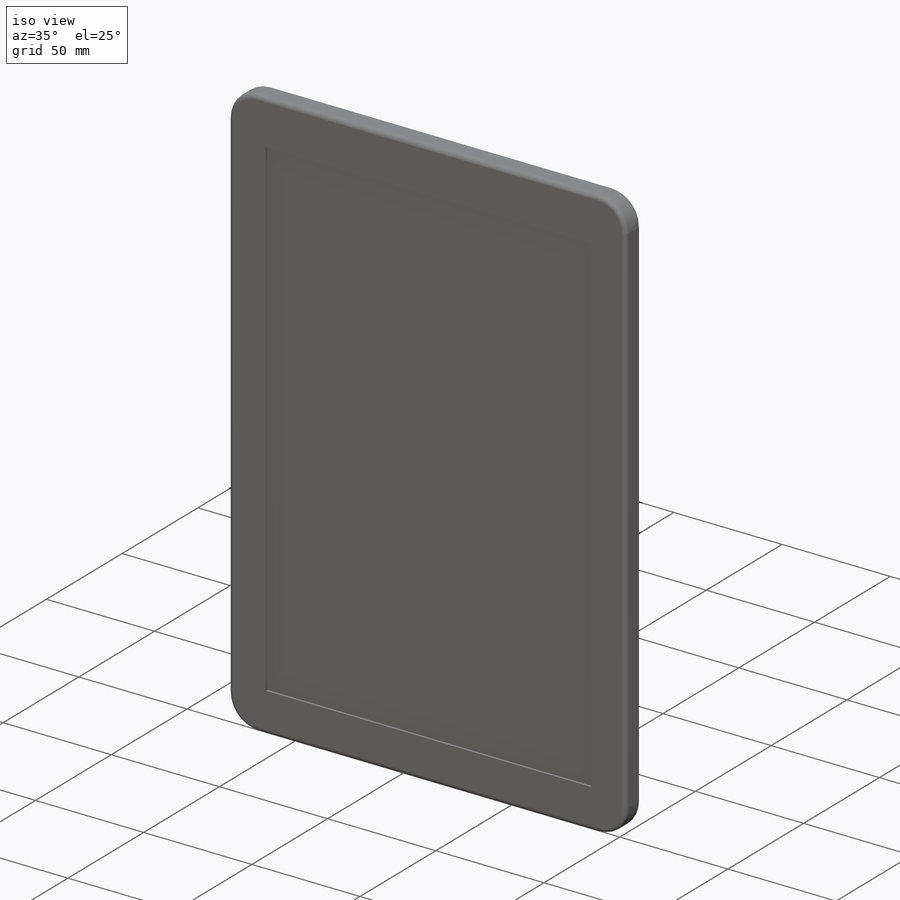
[diagram: iso view]
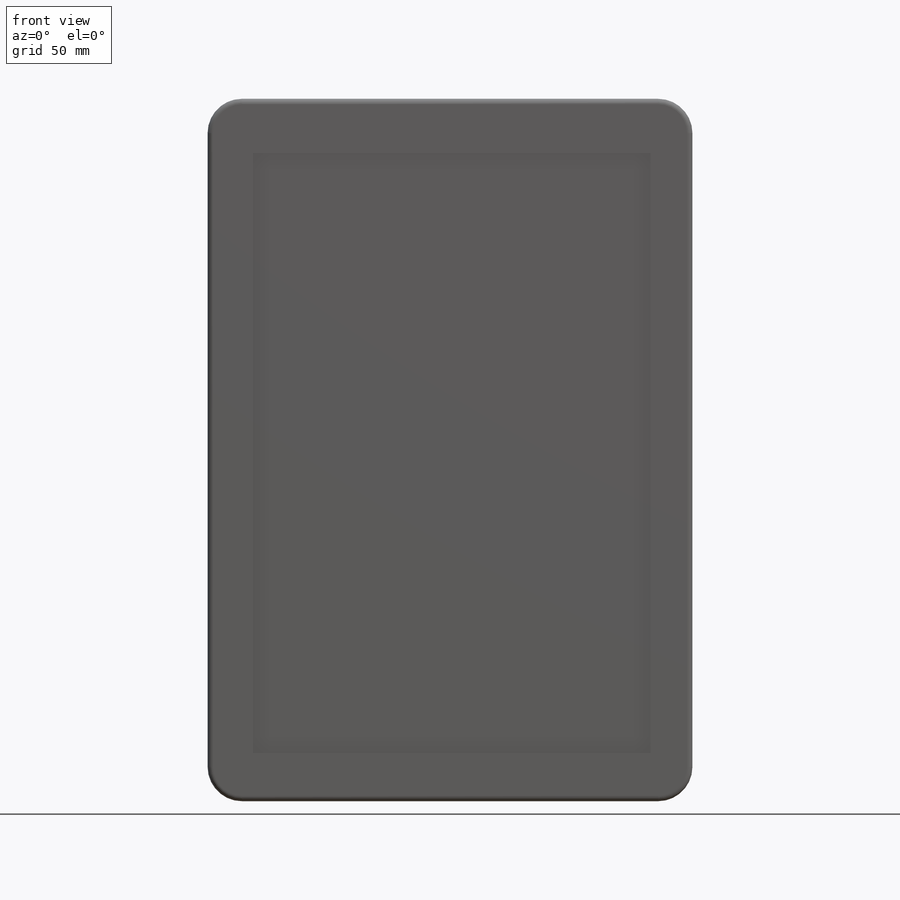
[diagram: front view]
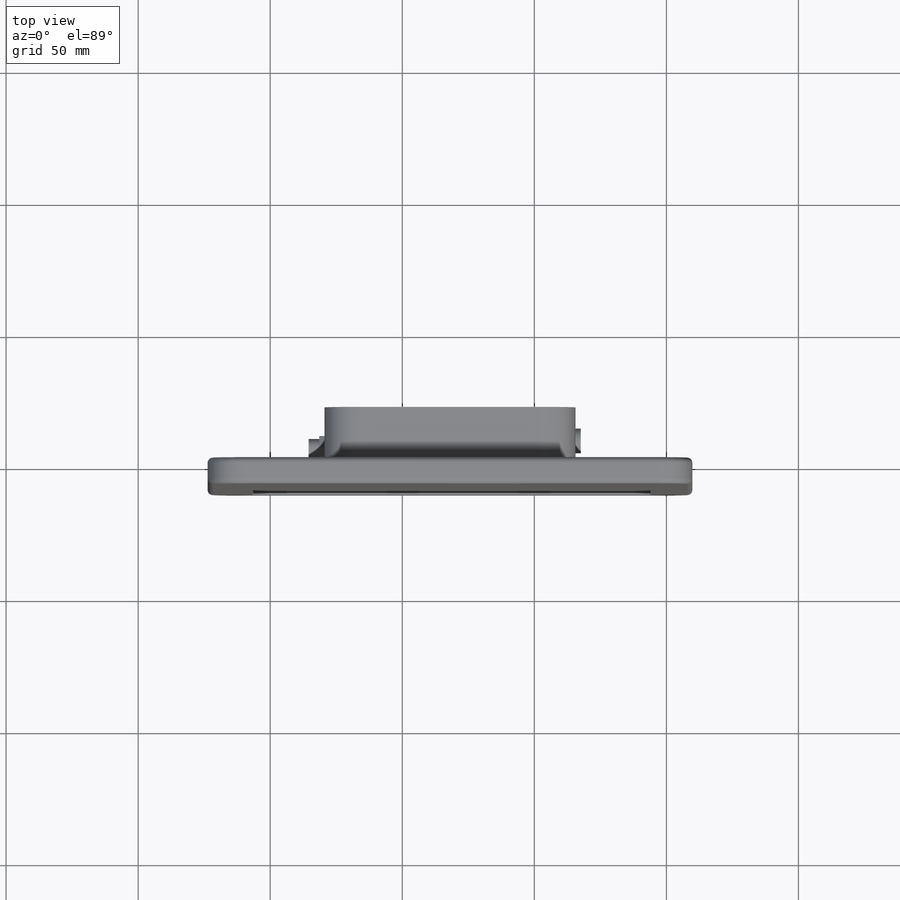
[diagram: top view]
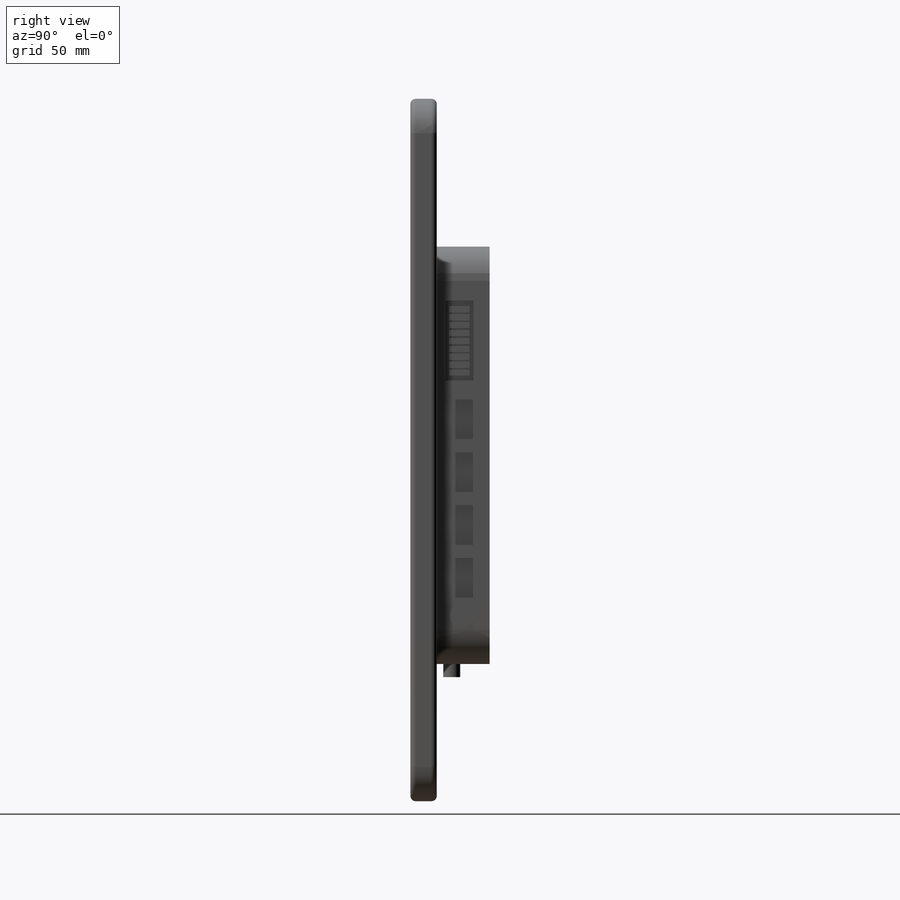
[diagram: right view]
SOLIDWORKS PART (.sldprt)
format: sldprt  version: not decoded by parser v0  size: 440,832 bytes
history: native  units: mm
features: sketch x13, cut_extrude x7, extrude x6, fillet x2, material x1 (+13 scaffold rows collapsed)
feature tree (42):
  scaffold x13  (default folders/planes/origin — collapsed)
  material  "Material <not specified>"
  sketch  "Sketch1"  dims[D3=12.98mm D1=183.55mm D2=265.95mm]
  extrude  "Boss-Extrude1"  Depth=10mm
  fillet  "Fillet1"  Radius=2mm
  fillet  "Fillet2"  Radius=2mm
  sketch  "Sketch2"
  cut_extrude  "Cut-Extrude1"  Depth=1mm
  sketch  "Sketch3"  dims[D5=12.98mm D1=95.0mm D2=158.0mm D3=44.28mm D4=53.98mm]
  extrude  "Boss-Extrude2"  Depth=20mm
  sketch  "Sketch4"  dims[D1=15.0mm D2=15.0mm D3=15.0mm D4=15.0mm D5=5.0mm D6=5.0mm D7=5.0mm D8=45.0mm]
  cut_extrude  "Cut-Extrude2"  Depth=5mm
  sketch  "Sketch5"  dims[D1=9.0]
  cut_extrude  "Cut-Extrude3"  Depth=5mm
  sketch  "Sketch6"
  extrude  "Boss-Extrude3"  Depth=2mm
  sketch  "Sketch7"
  cut_extrude  "Cut-Extrude4"  Depth=1mm
  sketch  "Sketch8"
  extrude  "Boss-Extrude4"  Depth=5mm
  sketch  "Sketch9"
  cut_extrude  "Cut-Extrude5"  Depth=5mm
  sketch  "Sketch10"
  cut_extrude  "Cut-Extrude6"  Depth=5mm
  sketch  "Sketch11"
  extrude  "Boss-Extrude5"  Depth=2mm
  sketch  "Sketch12"
  extrude  "Boss-Extrude6"  Depth=4mm
  sketch  "Sketch13"  dims[D2=2.0mm D3=2.0mm D1=75.0mm D4=54.0mm D5=38.0mm]
  cut_extrude  "Cut-Extrude7"  Depth=2mm
decode coverage: 20 of 28 modeling features carry decoded parameters
note: suppression state not decoded; provenance and decode notes live in map.json
